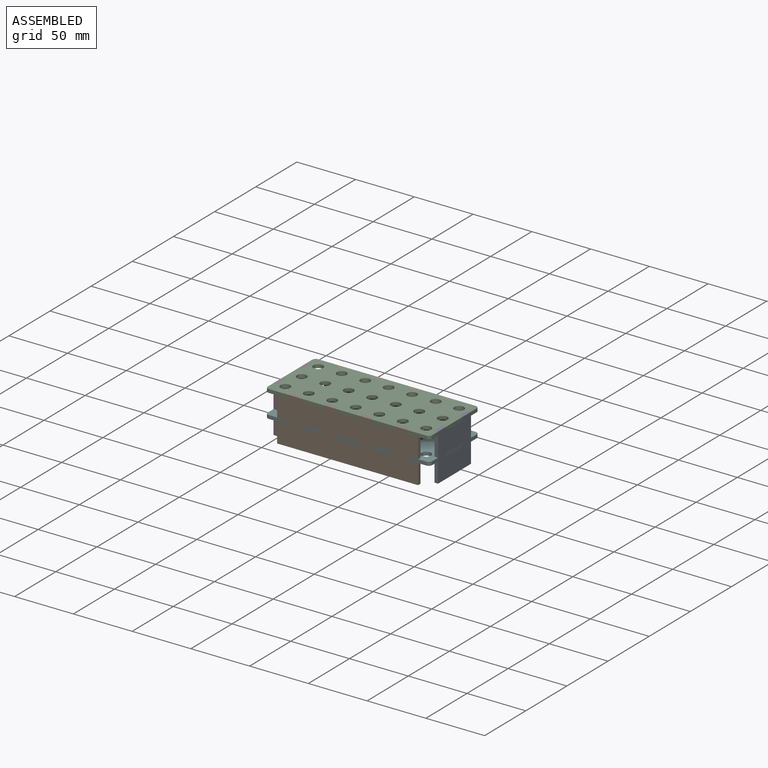
[diagram: assembled view]
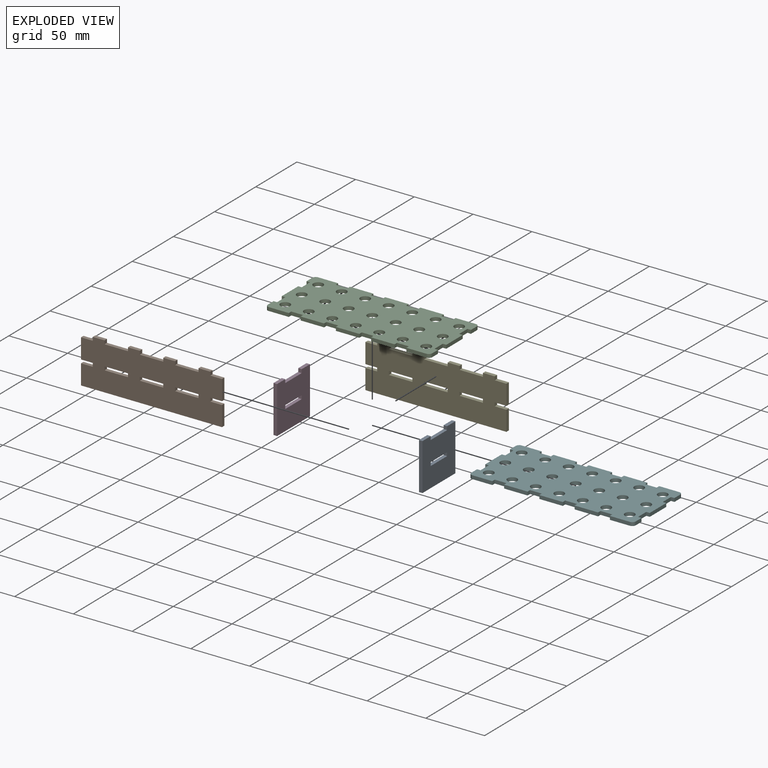
[diagram: exploded view]
GUIDED TOUR — MATED ASSEMBLY (Onshape document bf7217e7e349ee3925a6d196, AutoMate assembly bf7217e7e349ee3925a6d196_bf0dbe1fa8617c2c1cbeafb6_df14376c167c12fc1dc671b2_default)

This assembly has 6 components, labeled P0..P5 below (a component is one placed occurrence of a part; the same part can appear more than once), held together by 5 mates. A mate is a constraint between two components; its type names the relative motion it leaves free:
  FASTENED — locks the two components together rigidly (no relative motion).
Axis/direction vectors are unit vectors and 'through' points are millimeter coordinates, both in the assembly's world frame.

MATES
  1. FASTENED "Fastened 1": P2 <-> P1, direction (-1.000, 0.000, 0.000) through (-132.03, 107.63, 120.76) mm
  2. FASTENED "Fastened 4": P4 <-> P2, direction (1.000, 0.000, 0.000) through (-132.03, 167.63, 120.76) mm
  3. FASTENED "Fastened 3": P1 <-> P5, direction (1.000, 0.000, 0.000) through (-132.03, 107.63, 100.76) mm
  4. FASTENED "Fastened 2": P2 <-> P3, direction (0.000, 1.000, 0.000) through (-202.03, 137.63, 120.76) mm
  5. FASTENED "Fastened 5": P0 <-> P2, direction (0.000, 1.000, 0.000) through (-62.03, 137.63, 120.76) mm

ASSEMBLY ORDER
  1. P3 — the base component [order verified]
  2. P1 [order verified]
  3. P0 [order verified]
  4. P5 [order verified]
  5. P2 [order verified]
  6. P4 [order verified]
Order-tag legend:
  [order verified] — this step's position reverses a verified removal order: the component was checked to insert without passing through the ones already placed.

Of the 6 components, 4 carry the full construction recipe — the FeatureScript program that regenerates the part's solid from scratch; the rest are supplied as boundary geometry only.
Each toured component is shown spotlighted twice — in the assembled view, then in the exploded view, where a leader line traces a displaced component back to its assembled socket (saturated green if recipe-attached, orange if geometry-only; every other component desaturated gray) — followed by its recipe or geometry summary and the mates that hold it.
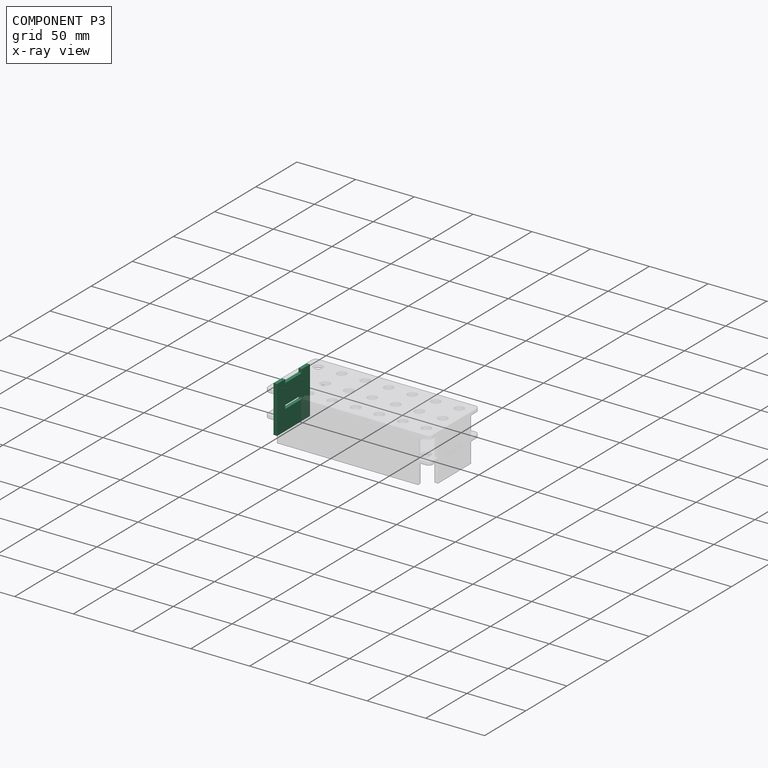
[diagram: component P3 — x-ray view]
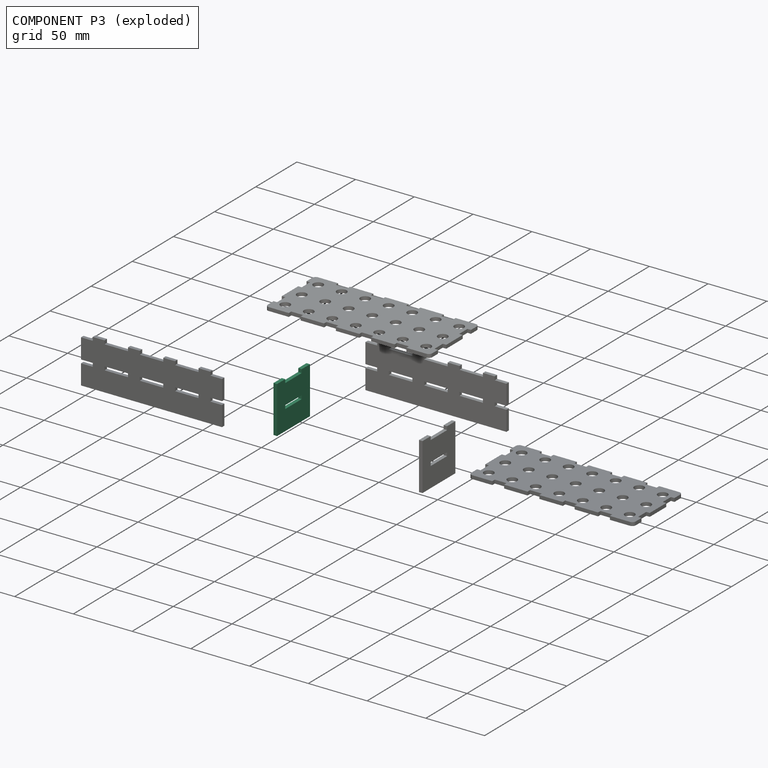
[diagram: component P3 — exploded]
COMPONENT P3 — same part as P0 (CADFS 00402195); its construction recipe is shown at P0.
Held by: FASTENED mate "Fastened 2" to P2.
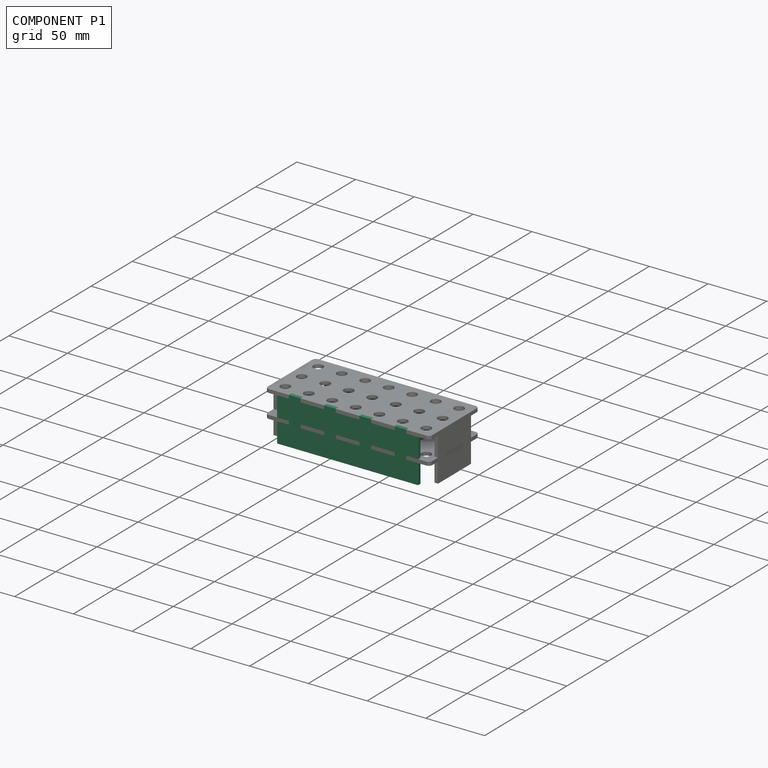
[diagram: component P1 — assembled]
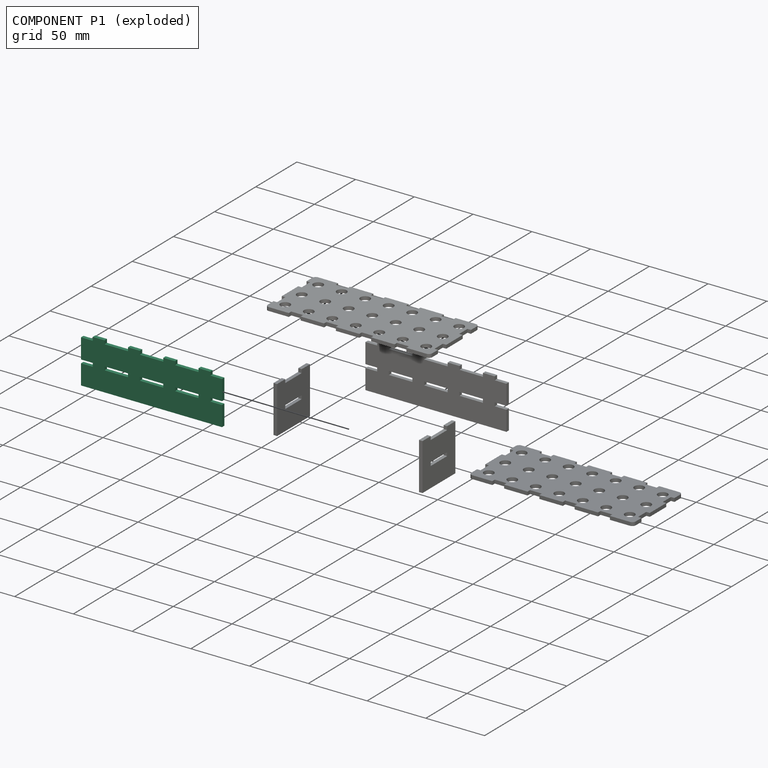
[diagram: component P1 — exploded]
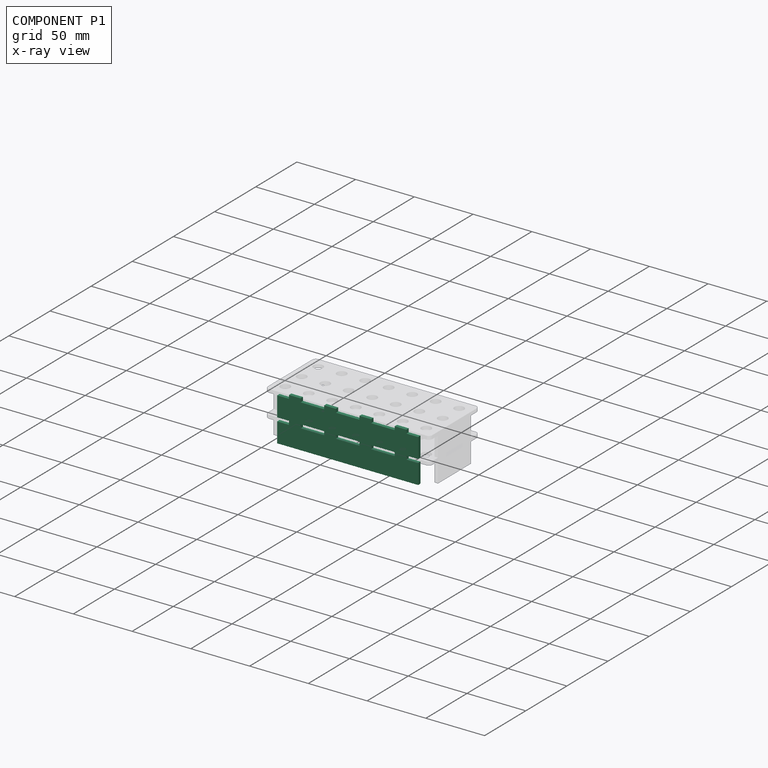
[diagram: component P1 — x-ray view]
COMPONENT P1 — recipe-attached (CADFS 00402194, mesh-verified: the recipe's output STEP matches this component's geometry to below the mesh-comparison resolution (tessellation chordal tolerance ~0.19 mm)).
Held by: FASTENED mate "Fastened 1" to P2; FASTENED mate "Fastened 3" to P5.
Construction recipe (FeatureScript — the CAD program that rebuilds this solid; sketch coordinates are in the units given by the * unit suffixes, e.g. mm):

FeatureScript 1511;
import(path : "onshape/std/geometry.fs", version : "1511.0");
import(path : "onshape/std/common.fs", version : "1511.0");
const mm = millimeter;
const VERTEX = EntityType.VERTEX;
const EDGE = EntityType.EDGE;
const FACE = EntityType.FACE;
const BODY = EntityType.BODY;
function v(x, y){return vector(x, y);}
function OD(order){return orderDisambiguation(order);}
function OSD(set){return originalSetDisambiguation(set);}
function TD(topology){return topologyDisambiguation(topology);}
function TDD(query){return trueDependencyDisambiguation(query);}
function sQuery(a, b, c) {return sketchEntityQuery(a, b, c);}

annotation { "Feature Type Name" : "Feature", "Feature Type Description" : "" }
export const myFeature = defineFeature(function(context is Context, id is Id, definition is map)
    precondition{}
    {
        {
            assignVariable(context, id + "F0", {"name" : "t", "anyValue" : 3});
        }
        {
            var Q0;
            Q0=qCreatedBy(makeId("Front.planeOp"),FACE);
            var sketch = newSketch(context, id + "F1", { "sketchPlane" : qUnion([Q0])});
            skLineSegment(sketch, "E0.bottom", {"start": v(60, -20) * mm, "end": v(-60, -20) * mm});
            skLineSegment(sketch, "E0.top", {"start": v(60, 20) * mm, "end": v(-60, 20) * mm});
            skLineSegment(sketch, "E0.left", {"start": v(60, -20) * mm, "end": v(60, 20) * mm});
            skLineSegment(sketch, "E0.right", {"start": v(-60, -20) * mm, "end": v(-60, 20) * mm});
            skPoint(sketch, "E0.middle", {"position": v(0, 0) * mm});
            skLineSegment(sketch, "E1.bottom", {"start": v(-60, 20) * mm, "end": v(-50, 20) * mm});
            skLineSegment(sketch, "E1.top", {"start": v(-60, 17) * mm, "end": v(-50, 17) * mm});
            skLineSegment(sketch, "E1.left", {"start": v(-60, 20) * mm, "end": v(-60, 17) * mm});
            skLineSegment(sketch, "E1.right", {"start": v(-50, 20) * mm, "end": v(-50, 17) * mm});
            skLineSegment(sketch, "E2.MirrorCS", {"start": v(50, 20) * mm, "end": v(50, 17) * mm});
            skLineSegment(sketch, "E3.MirrorCS", {"start": v(60, 20) * mm, "end": v(50, 20) * mm});
            skLineSegment(sketch, "E4.MirrorCS", {"start": v(60, 20) * mm, "end": v(60, 17) * mm});
            skLineSegment(sketch, "E5.MirrorCS", {"start": v(60, 17) * mm, "end": v(50, 17) * mm});
            skLineSegment(sketch, "E6.bottom", {"start": v(-40, 20) * mm, "end": v(-20, 20) * mm});
            skLineSegment(sketch, "E6.top", {"start": v(-40, 17) * mm, "end": v(-20, 17) * mm});
            skLineSegment(sketch, "E6.left", {"start": v(-40, 20) * mm, "end": v(-40, 17) * mm});
            skLineSegment(sketch, "E6.right", {"start": v(-20, 20) * mm, "end": v(-20, 17) * mm});
            skLineSegment(sketch, "E7.1.0.0", {"start": v(-10, 20) * mm, "end": v(10, 20) * mm});
            skLineSegment(sketch, "E7.1.0.1", {"start": v(-10, 17) * mm, "end": v(10, 17) * mm});
            skLineSegment(sketch, "E7.1.0.2", {"start": v(-10, 20) * mm, "end": v(-10, 17) * mm});
            skLineSegment(sketch, "E7.1.0.3", {"start": v(10, 20) * mm, "end": v(10, 17) * mm});
            skLineSegment(sketch, "E7.2.0.0", {"start": v(20, 20) * mm, "end": v(40, 20) * mm});
            skLineSegment(sketch, "E7.2.0.1", {"start": v(20, 17) * mm, "end": v(40, 17) * mm});
            skLineSegment(sketch, "E7.2.0.2", {"start": v(20, 20) * mm, "end": v(20, 17) * mm});
            skLineSegment(sketch, "E7.2.0.3", {"start": v(40, 20) * mm, "end": v(40, 17) * mm});
            skLineSegment(sketch, "E7.direction1", {"start": v(-40, 17) * mm, "end": v(-10, 17) * mm, "construction": true});
            skLineSegment(sketch, "E8", {"start": v(60, 0) * mm, "end": v(-60, 0) * mm, "construction": true});
            skLineSegment(sketch, "E9.0.1.0", {"start": v(-60, 0) * mm, "end": v(-60, -3) * mm});
            skLineSegment(sketch, "E9.0.1.1", {"start": v(-60, 0) * mm, "end": v(-50, 0) * mm});
            skLineSegment(sketch, "E9.0.1.2", {"start": v(-60, -3) * mm, "end": v(-50, -3) * mm});
            skLineSegment(sketch, "E9.0.1.3", {"start": v(-50, 0) * mm, "end": v(-50, -3) * mm});
            skLineSegment(sketch, "E9.0.1.4", {"start": v(-50, 0) * mm, "end": v(-50, -3) * mm});
            skLineSegment(sketch, "E9.0.1.5", {"start": v(-60, -3) * mm, "end": v(-50, -3) * mm});
            skLineSegment(sketch, "E9.0.1.6", {"start": v(-60, 0) * mm, "end": v(-60, -3) * mm});
            skLineSegment(sketch, "E9.0.1.7", {"start": v(-40, 0) * mm, "end": v(-20, 0) * mm});
            skLineSegment(sketch, "E9.0.1.8", {"start": v(-40, 0) * mm, "end": v(-40, -3) * mm});
            skLineSegment(sketch, "E9.0.1.9", {"start": v(-40, -3) * mm, "end": v(-20, -3) * mm});
            skLineSegment(sketch, "E9.0.1.10", {"start": v(-20, 0) * mm, "end": v(-20, -3) * mm});
            skLineSegment(sketch, "E9.0.1.11", {"start": v(10, 0) * mm, "end": v(10, -3) * mm});
            skLineSegment(sketch, "E9.0.1.12", {"start": v(-10, 0) * mm, "end": v(10, 0) * mm});
            skLineSegment(sketch, "E9.0.1.13", {"start": v(-10, 0) * mm, "end": v(-10, -3) * mm});
            skLineSegment(sketch, "E9.0.1.14", {"start": v(-10, -3) * mm, "end": v(10, -3) * mm});
            skLineSegment(sketch, "E9.0.1.15", {"start": v(20, 0) * mm, "end": v(40, 0) * mm});
            skLineSegment(sketch, "E9.0.1.16", {"start": v(20, -3) * mm, "end": v(40, -3) * mm});
            skLineSegment(sketch, "E9.0.1.17", {"start": v(20, 0) * mm, "end": v(20, -3) * mm});
            skLineSegment(sketch, "E9.0.1.18", {"start": v(40, 0) * mm, "end": v(40, -3) * mm});
            skLineSegment(sketch, "E9.0.1.19", {"start": v(60, 0) * mm, "end": v(50, 0) * mm});
            skLineSegment(sketch, "E9.0.1.20", {"start": v(60, 0) * mm, "end": v(60, -3) * mm});
            skLineSegment(sketch, "E9.0.1.21", {"start": v(50, 0) * mm, "end": v(50, -3) * mm});
            skLineSegment(sketch, "E9.0.1.22", {"start": v(60, -3) * mm, "end": v(50, -3) * mm});
            skLineSegment(sketch, "E9.0.1.23", {"start": v(60, -3) * mm, "end": v(50, -3) * mm});
            skLineSegment(sketch, "E9.0.1.24", {"start": v(60, 0) * mm, "end": v(60, -3) * mm});
            skLineSegment(sketch, "E9.0.1.25", {"start": v(60, 0) * mm, "end": v(50, 0) * mm});
            skLineSegment(sketch, "E9.0.1.26", {"start": v(50, 0) * mm, "end": v(50, -3) * mm});
            skLineSegment(sketch, "E9.direction1", {"start": v(-60, 17) * mm, "end": v(-35, 17) * mm, "construction": true});
            skLineSegment(sketch, "E9.direction2", {"start": v(-60, 17) * mm, "end": v(-60, -3) * mm, "construction": true});
            skSolve(sketch);
        }
        {
            var Q0;
            Q0=makeQuery(id+"F1.imprint","IMPRINT",FACE,{"disambiguationData":[TD([[makeQuery(id+"F1.imprint","IMPRINT",EDGE,{"derivedFrom":sQuery(id+"F1.wireOp",EDGE,"E0.bottom")}),-1.0]])]});
            extrude(context, id + "F2", {"entities" : qUnion([Q0]), "oppositeDirection" : true, "depth" : getVariable(context, 't') * mm});
        }
    });
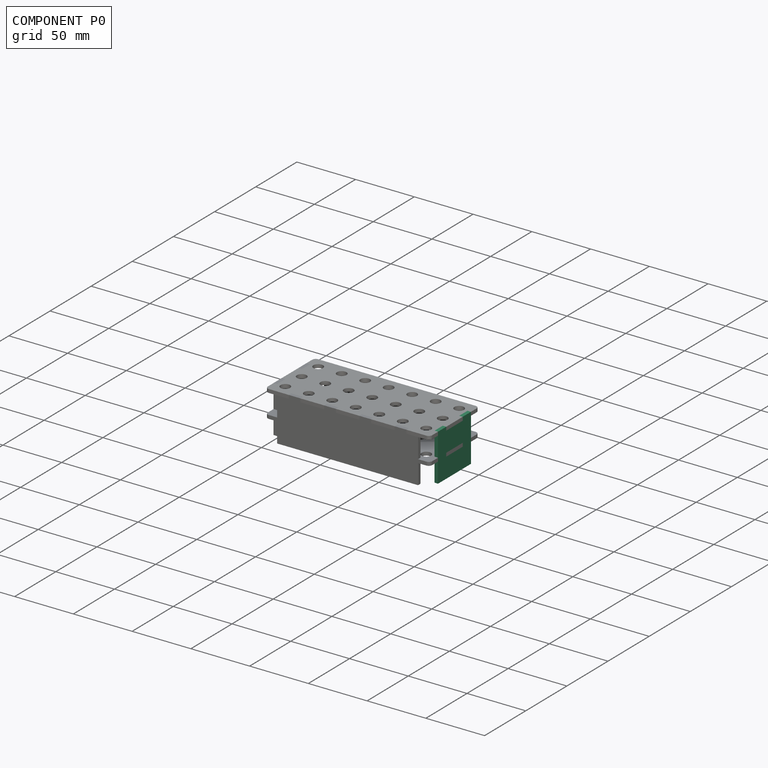
[diagram: component P0 — assembled]
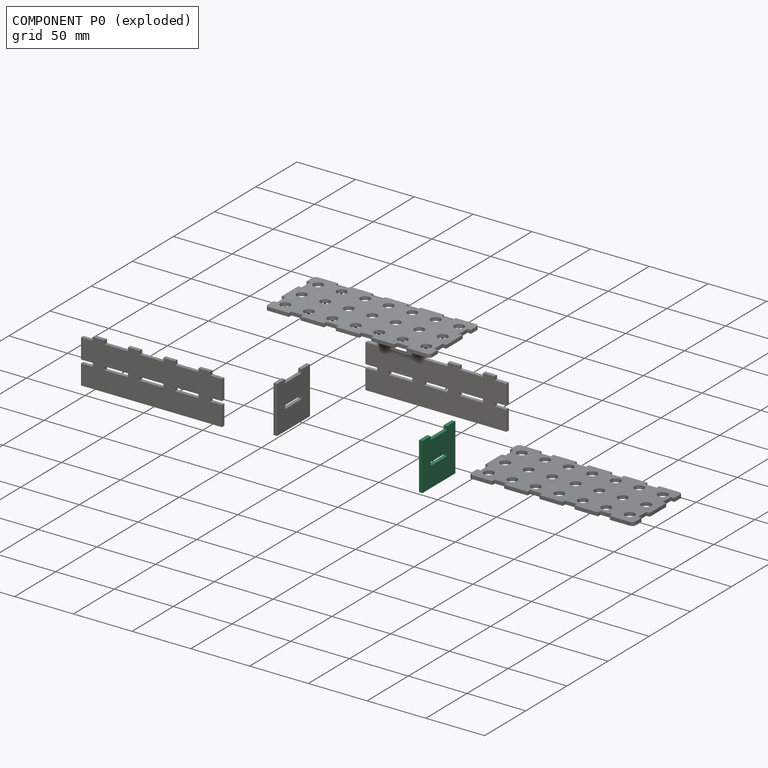
[diagram: component P0 — exploded]
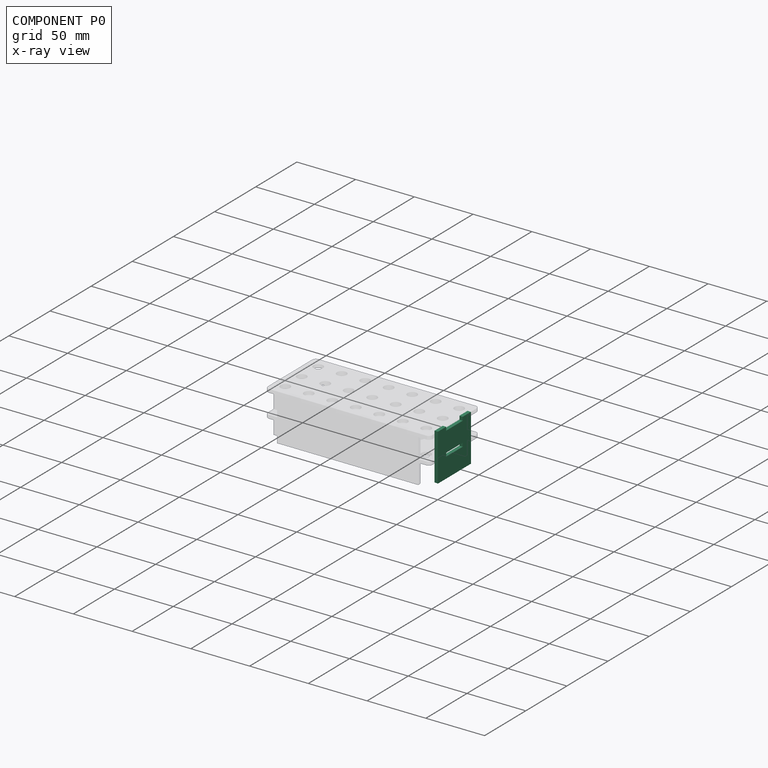
[diagram: component P0 — x-ray view]
COMPONENT P0 — recipe-attached (CADFS 00402195, mesh-verified: the recipe's output STEP matches this component's geometry to below the mesh-comparison resolution (tessellation chordal tolerance ~0.085 mm)).
Held by: FASTENED mate "Fastened 5" to P2.
Construction recipe (FeatureScript — the CAD program that rebuilds this solid; sketch coordinates are in the units given by the * unit suffixes, e.g. mm):

FeatureScript 1511;
import(path : "onshape/std/geometry.fs", version : "1511.0");
import(path : "onshape/std/common.fs", version : "1511.0");
const mm = millimeter;
const VERTEX = EntityType.VERTEX;
const EDGE = EntityType.EDGE;
const FACE = EntityType.FACE;
const BODY = EntityType.BODY;
function v(x, y){return vector(x, y);}
function OD(order){return orderDisambiguation(order);}
function OSD(set){return originalSetDisambiguation(set);}
function TD(topology){return topologyDisambiguation(topology);}
function TDD(query){return trueDependencyDisambiguation(query);}
function sQuery(a, b, c) {return sketchEntityQuery(a, b, c);}

annotation { "Feature Type Name" : "Feature", "Feature Type Description" : "" }
export const myFeature = defineFeature(function(context is Context, id is Id, definition is map)
    precondition{}
    {
        {
            assignVariable(context, id + "F0", {"name" : "t", "anyValue" : 3});
        }
        {
            var Q0;
            Q0=qCreatedBy(makeId("Right.planeOp"),FACE);
            var sketch = newSketch(context, id + "F1", { "sketchPlane" : qUnion([Q0])});
            skLineSegment(sketch, "E0.bottom", {"start": v(20, -20) * mm, "end": v(-20, -20) * mm});
            skLineSegment(sketch, "E0.top", {"start": v(20, 20) * mm, "end": v(-20, 20) * mm});
            skLineSegment(sketch, "E0.left", {"start": v(20, -20) * mm, "end": v(20, 20) * mm});
            skLineSegment(sketch, "E0.right", {"start": v(-20, -20) * mm, "end": v(-20, 20) * mm});
            skPoint(sketch, "E0.middle", {"position": v(0, 0) * mm});
            skLineSegment(sketch, "E1.bottom", {"start": v(-10, 20) * mm, "end": v(10, 20) * mm});
            skLineSegment(sketch, "E1.top", {"start": v(-10, 17) * mm, "end": v(10, 17) * mm});
            skLineSegment(sketch, "E1.left", {"start": v(-10, 20) * mm, "end": v(-10, 17) * mm});
            skLineSegment(sketch, "E1.right", {"start": v(10, 20) * mm, "end": v(10, 17) * mm});
            skLineSegment(sketch, "E2.0.1.0", {"start": v(-10, 0) * mm, "end": v(10, 0) * mm});
            skLineSegment(sketch, "E2.0.1.1", {"start": v(-10, -3) * mm, "end": v(10, -3) * mm});
            skLineSegment(sketch, "E2.0.1.2", {"start": v(-10, 0) * mm, "end": v(-10, -3) * mm});
            skLineSegment(sketch, "E2.0.1.3", {"start": v(10, 0) * mm, "end": v(10, -3) * mm});
            skLineSegment(sketch, "E2.direction1", {"start": v(-10, 17) * mm, "end": v(15, 17) * mm, "construction": true});
            skLineSegment(sketch, "E2.direction2", {"start": v(-10, 17) * mm, "end": v(-10, -3) * mm, "construction": true});
            skSolve(sketch);
        }
        {
            var Q0;
            Q0=makeQuery(id+"F1.imprint","IMPRINT",FACE,{"disambiguationData":[TD([[makeQuery(id+"F1.imprint","IMPRINT",EDGE,{"derivedFrom":sQuery(id+"F1.wireOp",EDGE,"E0.bottom")}),-1.0]])]});
            extrude(context, id + "F2", {"entities" : qUnion([Q0]), "oppositeDirection" : true, "depth" : getVariable(context, 't') * mm});
        }
    });
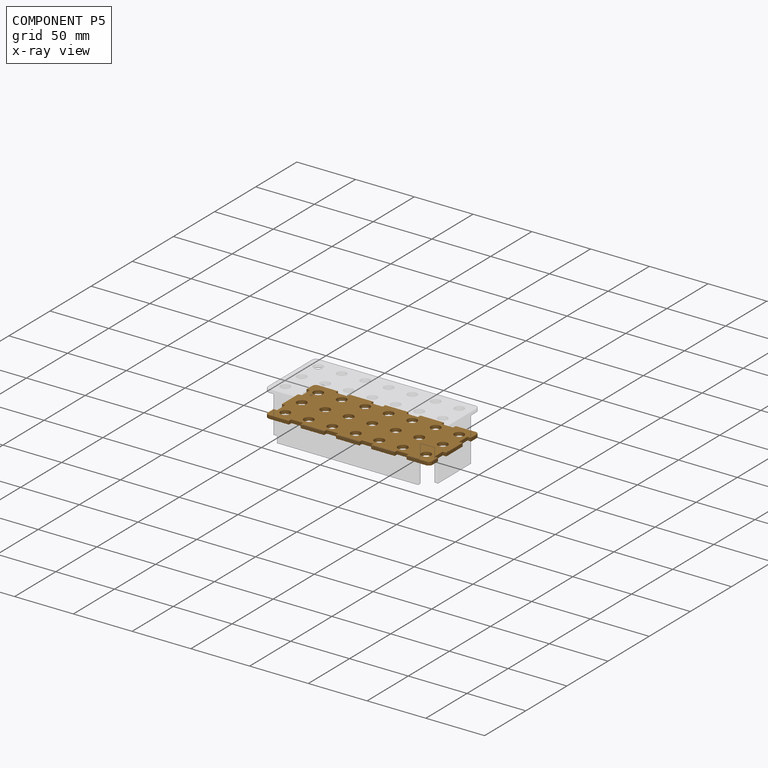
[diagram: component P5 — x-ray view]
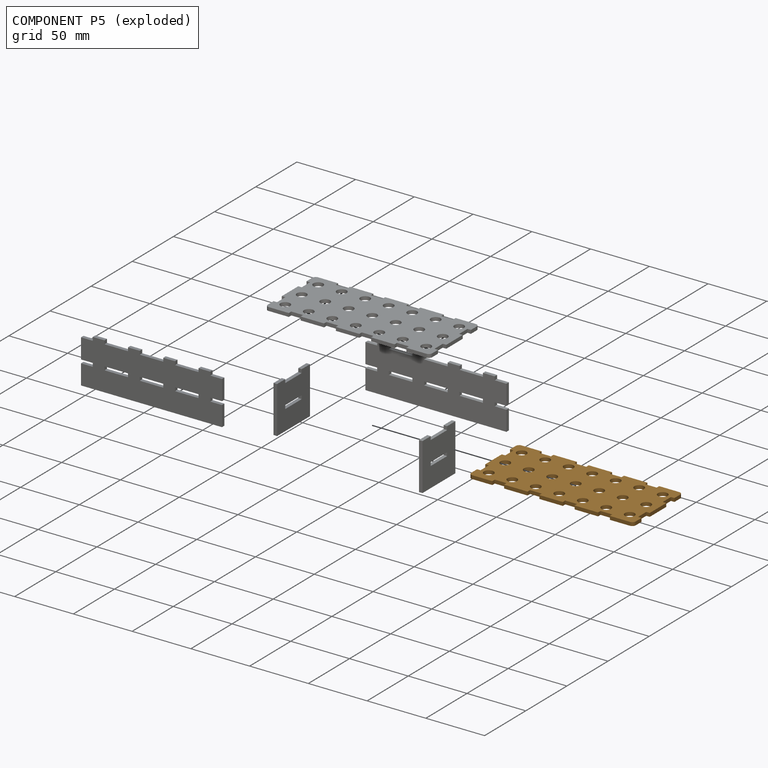
[diagram: component P5 — exploded]
COMPONENT P5 — geometry summary (no construction recipe available for this part):
  bounding box: 140.0 x 60.0 x 3.0 mm
  B-rep topology: 1 solid, 79 faces, 462 edges
  volume: 20770 mm^3 (82% of its bounding box)
  symmetry: 2-fold rotationally symmetric about the x axis; 2-fold rotationally symmetric about the y axis; 2-fold rotationally symmetric about the z axis; mirror-symmetric across its x mid-plane, y mid-plane, z mid-plane
Held by: FASTENED mate "Fastened 3" to P1.
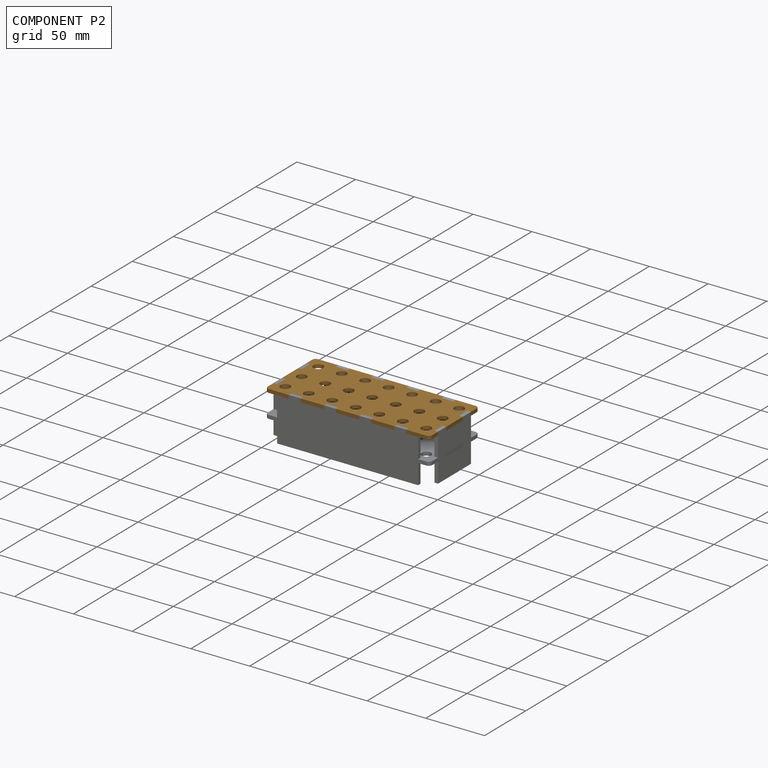
[diagram: component P2 — assembled]
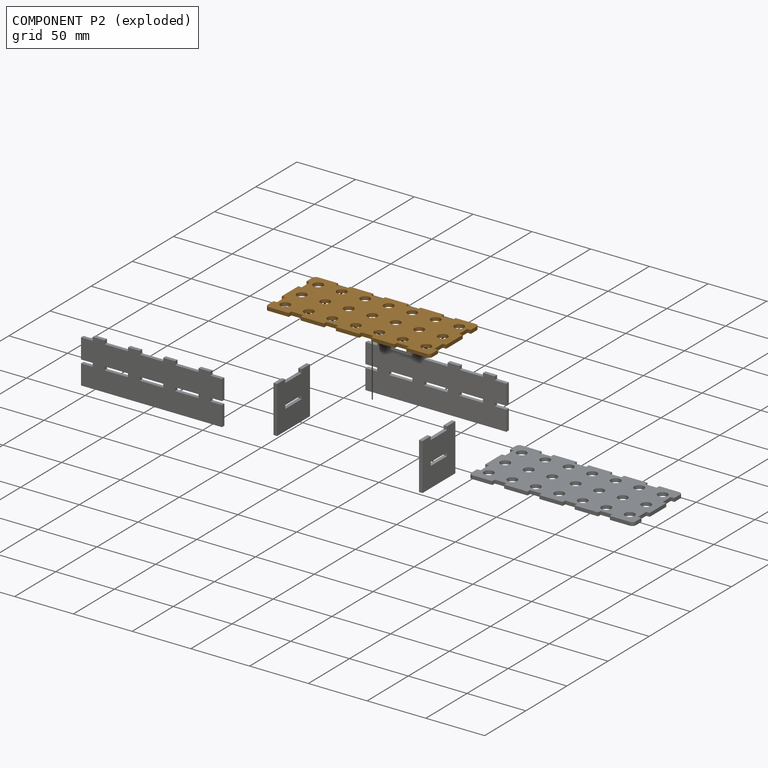
[diagram: component P2 — exploded]
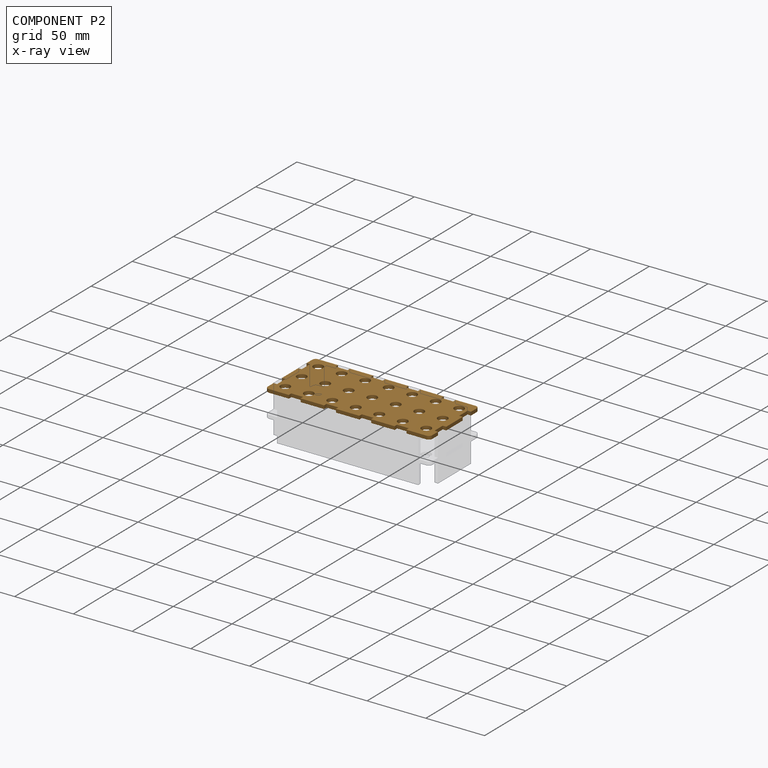
[diagram: component P2 — x-ray view]
COMPONENT P2 — geometry summary (no construction recipe available for this part):
  bounding box: 140.0 x 60.0 x 3.0 mm
  B-rep topology: 1 solid, 79 faces, 462 edges
  volume: 20770 mm^3 (82% of its bounding box)
  symmetry: 2-fold rotationally symmetric about the x axis; 2-fold rotationally symmetric about the y axis; 2-fold rotationally symmetric about the z axis; mirror-symmetric across its x mid-plane, y mid-plane, z mid-plane
Held by: FASTENED mate "Fastened 1" to P1; FASTENED mate "Fastened 4" to P4; FASTENED mate "Fastened 2" to P3; FASTENED mate "Fastened 5" to P0.
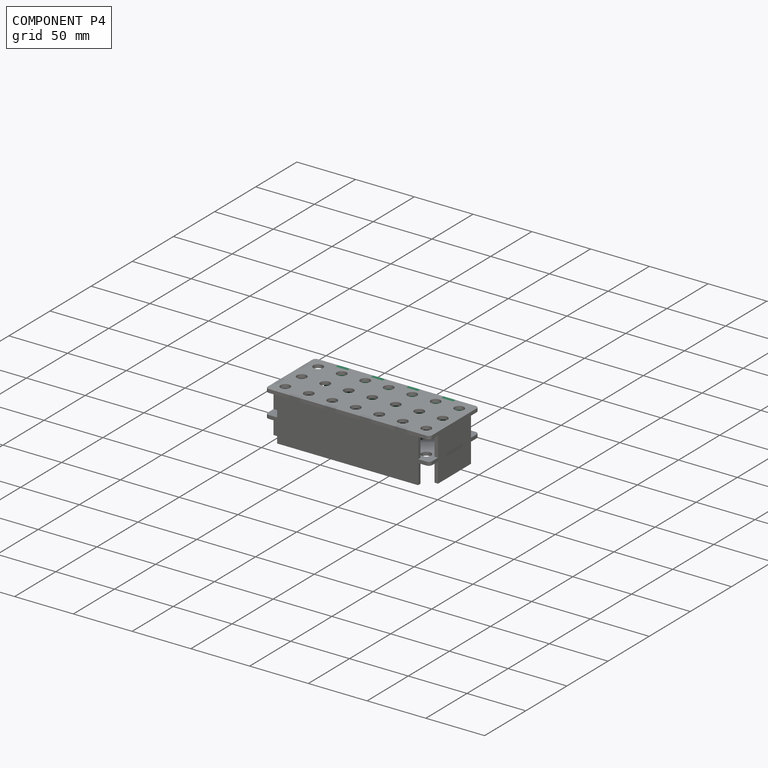
[diagram: component P4 — assembled]
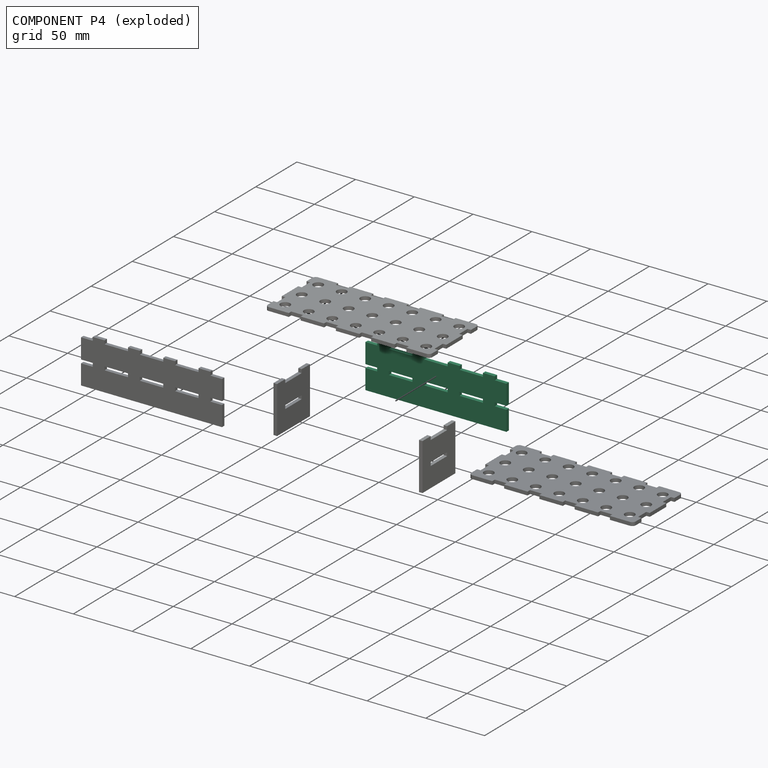
[diagram: component P4 — exploded]
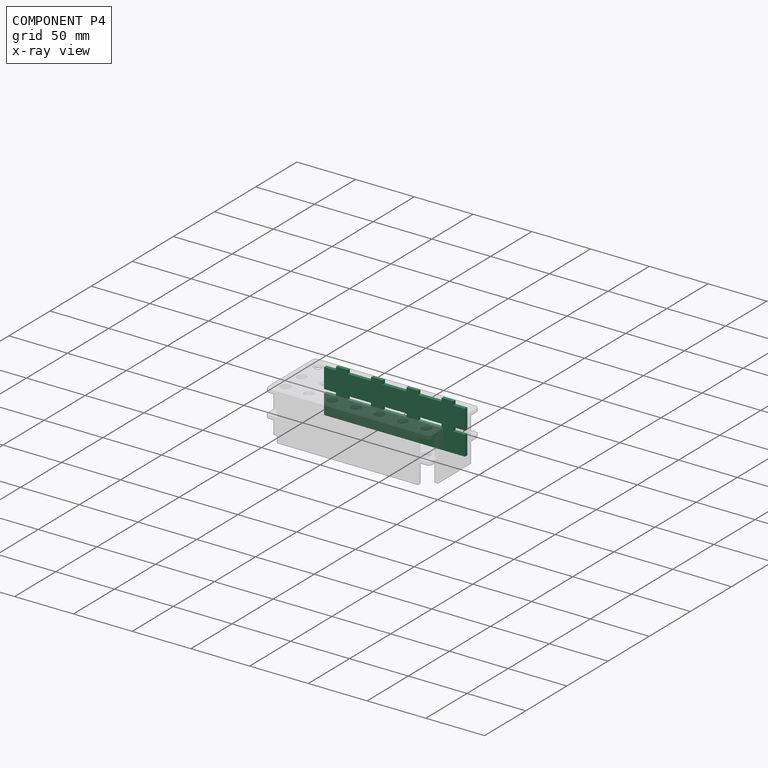
[diagram: component P4 — x-ray view]
COMPONENT P4 — same part as P1 (CADFS 00402194); its construction recipe is shown at P1.
Held by: FASTENED mate "Fastened 4" to P2.
PROVENANCE & LICENSES
Assembly (occurrences, transforms, mates, per-part STEP geometry): AutoMate dataset, Zenodo record 7776208, CC0.
Construction recipes: CADFS (HuggingFace VladPyatov/CADFS, CC-BY-4.0, layered over the ABC dataset), FeatureScript reconstruction programs keyed by ABC model id.
Join: ABC meta listings map ABC model id -> Onshape documentId; within a shared document, parts are matched by geometric signature (bounding-box dims + volume at 0.1% relative tolerance, exact B-rep face/solid counts).
Verification: 4 of this assembly's 6 components carry a recipe attachment, and every attachment is mesh-verified: the CADFS STEP and the AutoMate member STEP were compared as meshes in their shared local frame (symmetric sampled-point-to-mesh distance); worst across the 4 attachments: below the mesh-comparison resolution (tessellation chordal tolerance ~0.19 mm) on a 127 mm part.
Renders: orthographic iso camera (az 35 / el 25); the floor grid conveys scale (grid pitch printed in each image; no ruler). In the exploded view each component is displaced by its stored offset vector: the offsets alone carry the explosion direction (mate normal/axis signs are not orientation cues and do not encode it), and separation distances are assigned per mate-chain, not proportionally to assembly-order depth.
